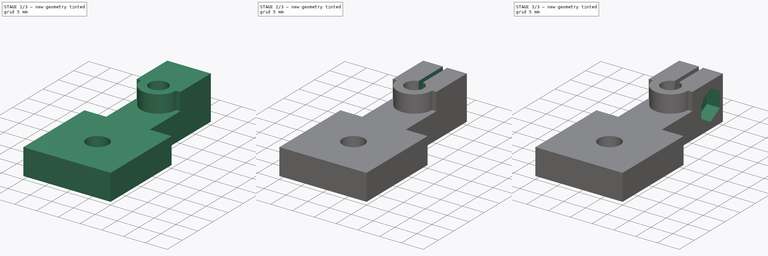
[diagram: build sequence overview — one tinted view per stage of 3, left to right]
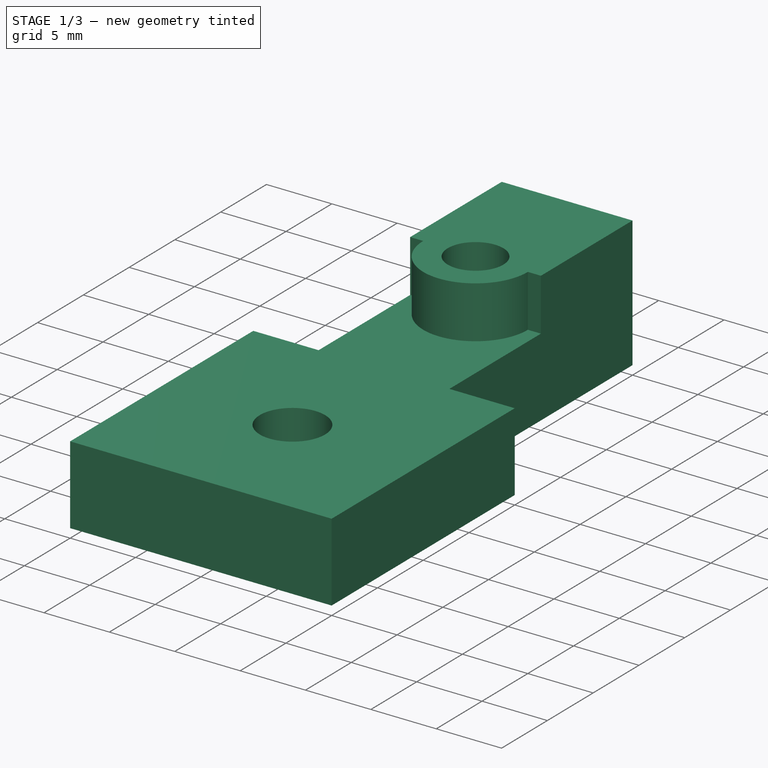
[diagram: stage 1 of 3 — iso view after this stage's code; geometry added in this stage tinted green]
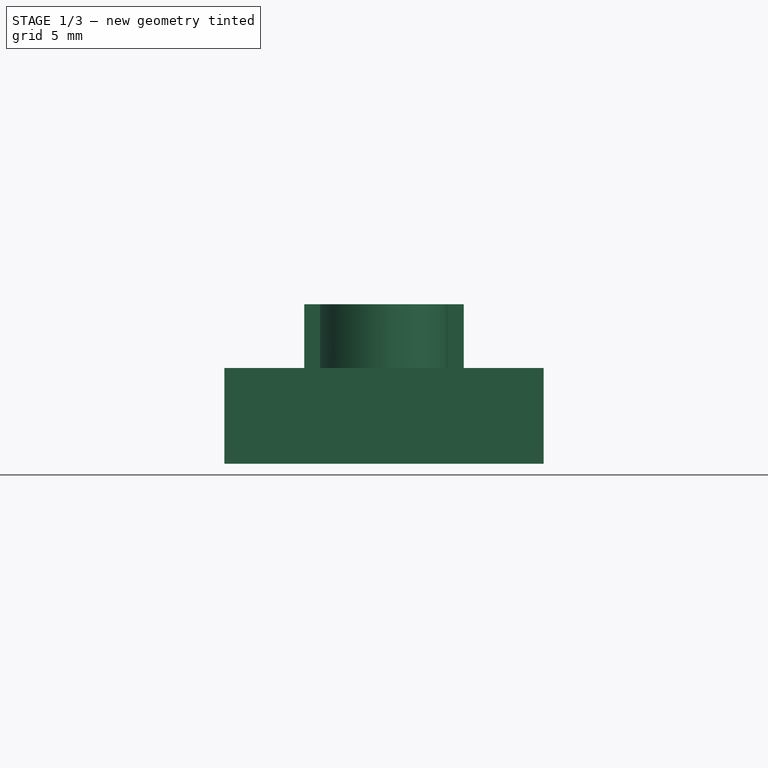
[diagram: stage 1 of 3 — front view after this stage's code; geometry added in this stage tinted green]
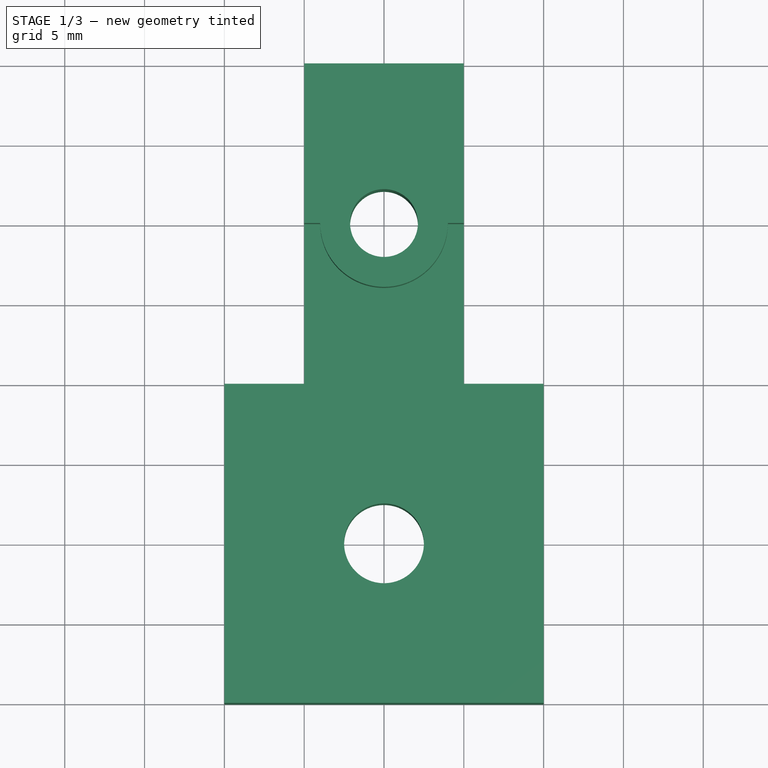
[diagram: stage 1 of 3 — top view after this stage's code; geometry added in this stage tinted green]
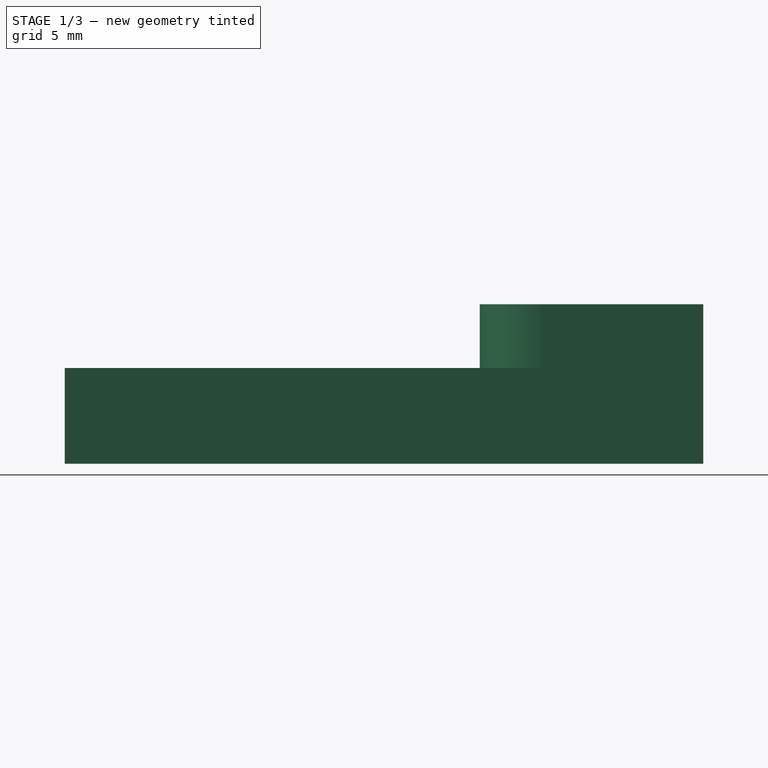
[diagram: stage 1 of 3 — right view after this stage's code; geometry added in this stage tinted green]
FCSTD DOCUMENT  (FreeCAD 0.20R27861 (Git))
Label: reverse boden tube holder straight
License: All rights reserved
LicenseURL: http://en.wikipedia.org/wiki/All_rights_reserved
objects: Sketcher::SketchObject×5, PartDesign::Pocket×3, PartDesign::Pad×2, PartDesign::Body×1
note: 16 computed .brp shape members not serialized (recipe doc carries the construction recipe); baked Part::Feature solids carry a one-line shape summary decoded from their .brp

FEATURE [Sketcher::SketchObject] Sketch
  FullyConstrained = true
  MapMode = 5
  Support = -> [XY_Plane]
  sketch-geometry (10):
    g0: LineSegment StartX=-5 StartY=40 StartZ=0 EndX=5 EndY=40 EndZ=0
    g1: LineSegment StartX=10 StartY=0 StartZ=0 EndX=-10 EndY=0 EndZ=0
    g2: Circle CenterX=0 CenterY=30 CenterZ=0 NormalX=0 NormalY=0 NormalZ=1 AngleXU=0 Radius=2.125
    g3: Circle CenterX=0 CenterY=10 CenterZ=0 NormalX=0 NormalY=0 NormalZ=1 AngleXU=0 Radius=2.5
    g4: LineSegment StartX=-10 StartY=0 StartZ=0 EndX=-10 EndY=20 EndZ=0
    g5: LineSegment StartX=10 StartY=0 StartZ=0 EndX=10 EndY=20 EndZ=0
    g6: LineSegment StartX=-10 StartY=20 StartZ=0 EndX=-5 EndY=20 EndZ=0
    g7: LineSegment StartX=-5 StartY=20 StartZ=0 EndX=-5 EndY=40 EndZ=0
    g8: LineSegment StartX=10 StartY=20 StartZ=0 EndX=5 EndY=20 EndZ=0
    g9: LineSegment StartX=5 StartY=20 StartZ=0 EndX=5 EndY=40 EndZ=0
  constraints (29):
    c: Horizontal(g1)
    c: PointOnObject(g1,g-1)
    c: Symmetric(g0,g0,g-2)
    c: DistanceX(g1,g1) = 20
    c: DistanceY(g1,g0) = 40
    c: PointOnObject(g2,g-2)
    c: Diameter(g2) = 4.25
    c: DistanceY(g2,g0) = 10
    c: PointOnObject(g3,g-2)
    c: Diameter(g3) = 5
    c: DistanceY(g-1,g3) = 10
    c: Coincident(g4,g1)
    c: Vertical(g4)
    c: Coincident(g5,g1)
    c: Vertical(g5)
    c: Coincident(g6,g4)
    c: Horizontal(g6)
    c: Coincident(g7,g6)
    c: Coincident(g7,g0)
    c: Vertical(g7)
    c: Coincident(g8,g5)
    c: Horizontal(g8)
    c: Coincident(g9,g8)
    c: Coincident(g9,g0)
    c: Vertical(g9)
    c: Equal(g6,g8)
    c: DistanceX(g0,g0) = 10
    c: Equal(g1,g5)
    c: Equal(g4,g5)
FEATURE [PartDesign::Pad] Pad
  Direction = (0,0,1)
  Length = 6
  Length2 = 10
  Profile = -> Sketch
  ReferenceAxis = -> Sketch [N_Axis]
  Refine = true
  Type = 0
FEATURE [Sketcher::SketchObject] Sketch001
  FullyConstrained = true
  MapMode = 5
  Support = -> [XY_Plane]
  sketch-geometry (7):
    g0: Circle CenterX=0 CenterY=30 CenterZ=0 NormalX=0 NormalY=0 NormalZ=1 AngleXU=0 Radius=2.125
    g1: ArcOfCircle CenterX=0 CenterY=30 CenterZ=0 NormalX=0 NormalY=0 NormalZ=1 AngleXU=0 Radius=4 StartAngle=3.14159 EndAngle=6.28319
    g2: LineSegment StartX=-5 StartY=40 StartZ=0 EndX=5 EndY=40 EndZ=0
    g3: LineSegment StartX=-4 StartY=30 StartZ=0 EndX=-5 EndY=30 EndZ=0
    g4: LineSegment StartX=-5 StartY=30 StartZ=0 EndX=-5 EndY=40 EndZ=0
    g5: LineSegment StartX=4 StartY=30 StartZ=0 EndX=5 EndY=30 EndZ=0
    g6: LineSegment StartX=5 StartY=30 StartZ=0 EndX=5 EndY=40 EndZ=0
  constraints (21):
    c: Diameter(g0) = 4.25
    c: DistanceY(g0) = 30
    c: PointOnObject(g0,g-2)
    c: Coincident(g1,g0)
    c: Horizontal(g2)
    c: Diameter(g1) = 8
    c: Horizontal(g1,g1)
    c: Horizontal(g0,g1)
    c: Coincident(g3,g1)
    c: Coincident(g4,g3)
    c: Coincident(g4,g2)
    c: Vertical(g4)
    c: Coincident(g5,g1)
    c: Coincident(g6,g5)
    c: Coincident(g6,g2)
    c: Horizontal(g5)
    c: Vertical(g6)
    c: Horizontal(g3)
    c: Equal(g3,g5)
    c: DistanceX(g2,g2) = 10
    c: DistanceY(g4,g4) = 10
FEATURE [PartDesign::Pad] Pad001
  BaseFeature = -> Pad
  Direction = (0,0,1)
  Length = 10
  Length2 = 10
  Profile = -> Sketch001
  ReferenceAxis = -> Sketch001 [N_Axis]
  Refine = true
  Type = 0
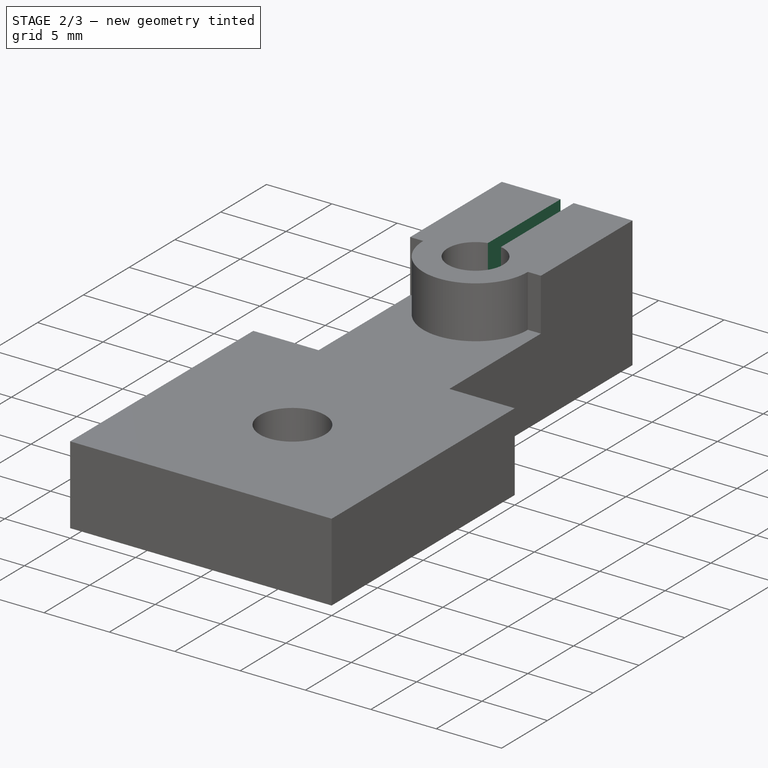
[diagram: stage 2 of 3 — iso view after this stage's code; geometry added in this stage tinted green]
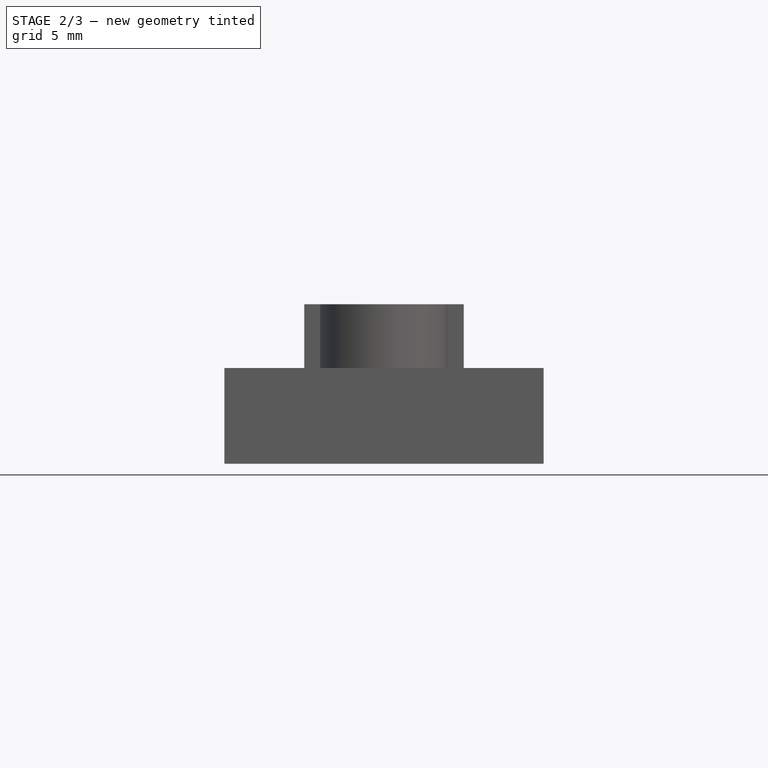
[diagram: stage 2 of 3 — front view after this stage's code; geometry added in this stage tinted green]
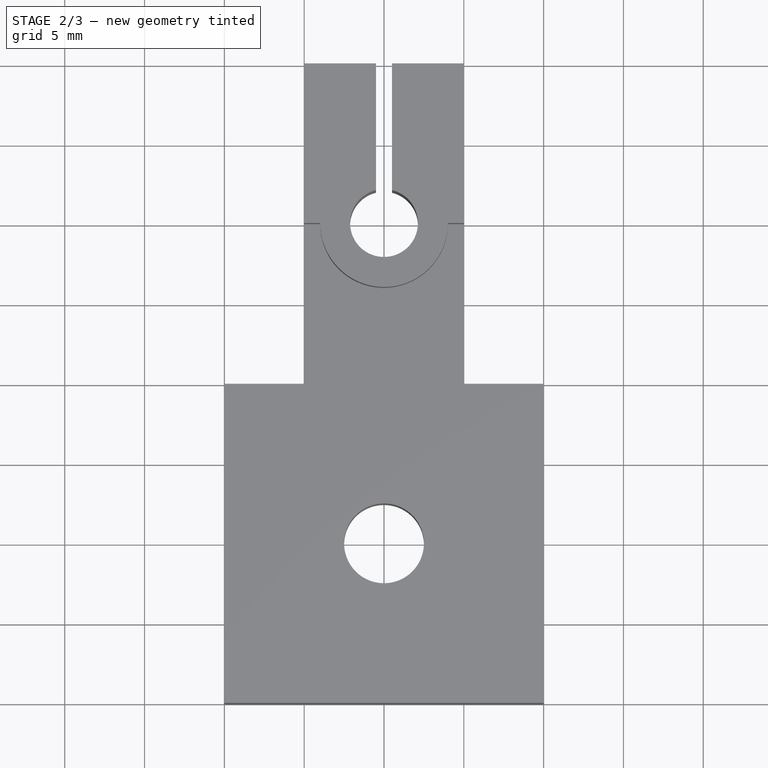
[diagram: stage 2 of 3 — top view after this stage's code; geometry added in this stage tinted green]
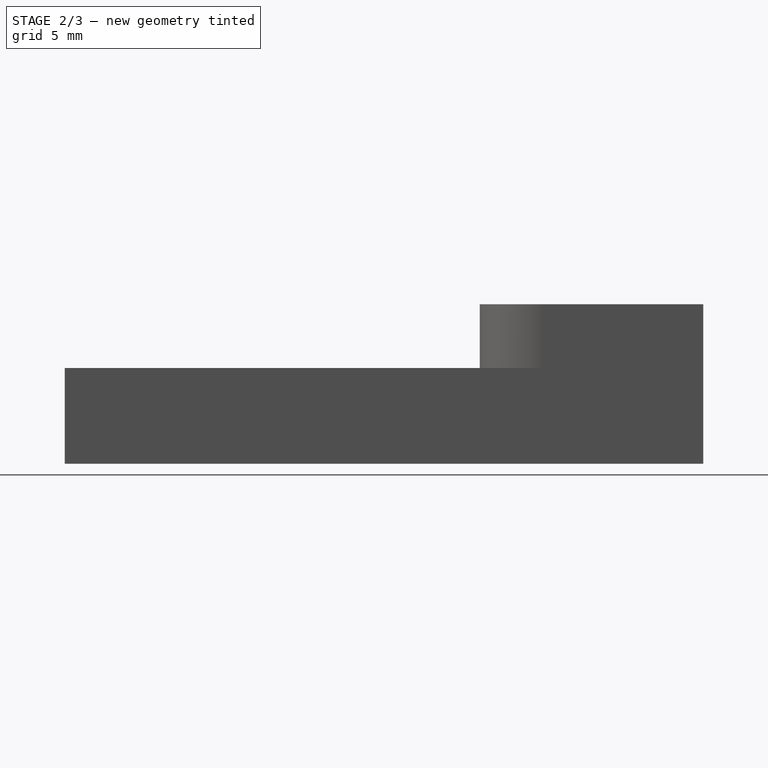
[diagram: stage 2 of 3 — right view after this stage's code; geometry added in this stage tinted green]
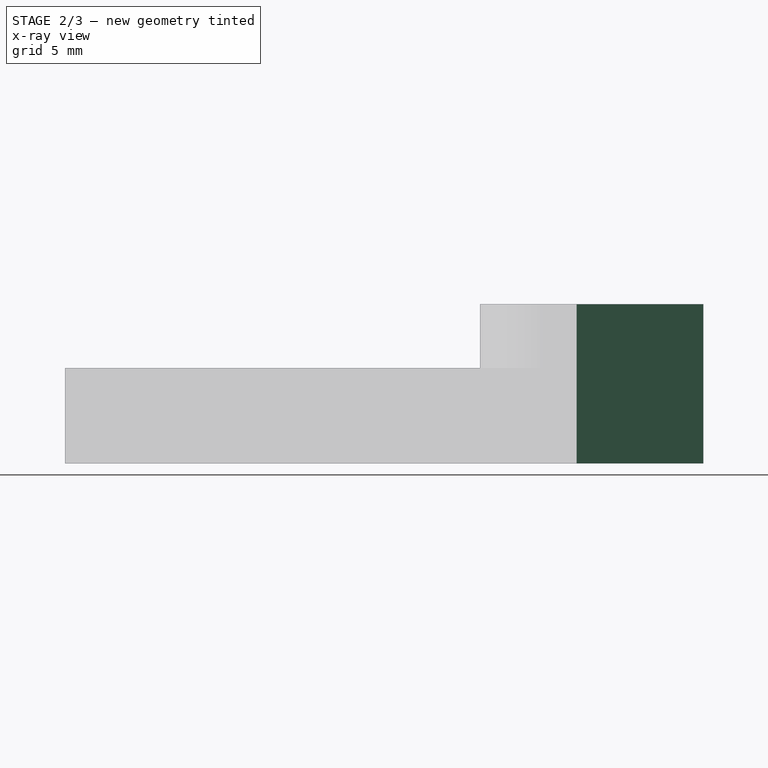
[diagram: stage 2 of 3 — x-ray composite at the right view; earlier geometry ghosted, this stage's added geometry solid]
FEATURE [Sketcher::SketchObject] Sketch002
  FullyConstrained = true
  MapMode = 5
  Support = -> [XY_Plane]
  sketch-geometry (4):
    g0: LineSegment StartX=-0.5 StartY=50 StartZ=0 EndX=0.5 EndY=50 EndZ=0
    g1: LineSegment StartX=0.5 StartY=50 StartZ=0 EndX=0.5 EndY=30 EndZ=0
    g2: LineSegment StartX=0.5 StartY=30 StartZ=0 EndX=-0.5 EndY=30 EndZ=0
    g3: LineSegment StartX=-0.5 StartY=30 StartZ=0 EndX=-0.5 EndY=50 EndZ=0
  constraints (11):
    c: Coincident(g0,g1)
    c: Coincident(g1,g2)
    c: Coincident(g2,g3)
    c: Coincident(g3,g0)
    c: Horizontal(g2)
    c: Vertical(g1)
    c: Vertical(g3)
    c: DistanceX(g0,g0) = 1
    c: Symmetric(g0,g0,g-2)
    c: DistanceY(g2) = 30
    c: DistanceY(g3,g3) = 20
FEATURE [PartDesign::Pocket] Pocket
  BaseFeature = -> Pad001
  Direction = (0,0,-1)
  Length = 5
  Length2 = 5
  Profile = -> Sketch002
  ReferenceAxis = -> Sketch002 [N_Axis]
  Refine = true
  Reversed = true
  Type = 1
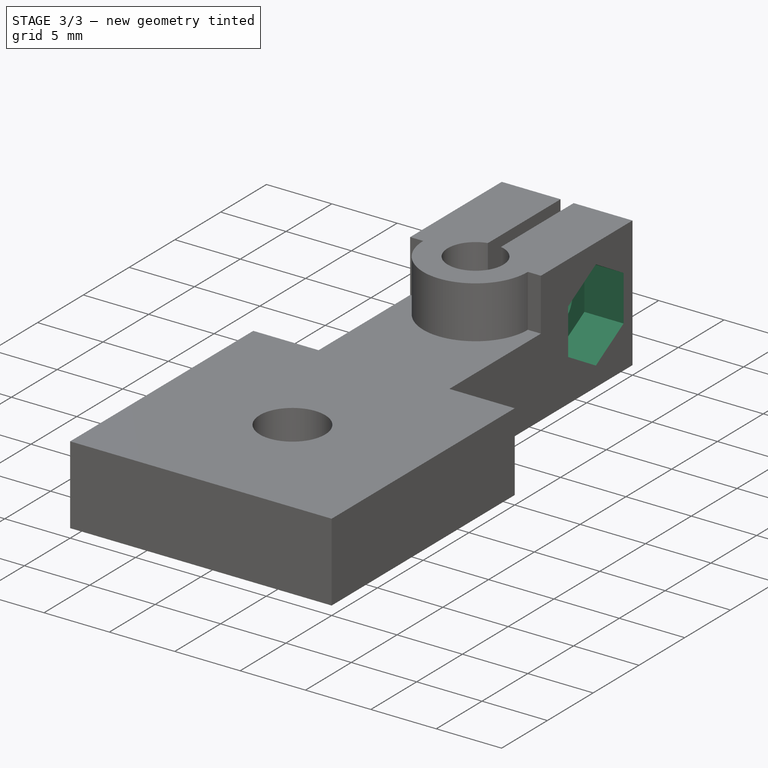
[diagram: stage 3 of 3 — iso view after this stage's code; geometry added in this stage tinted green]
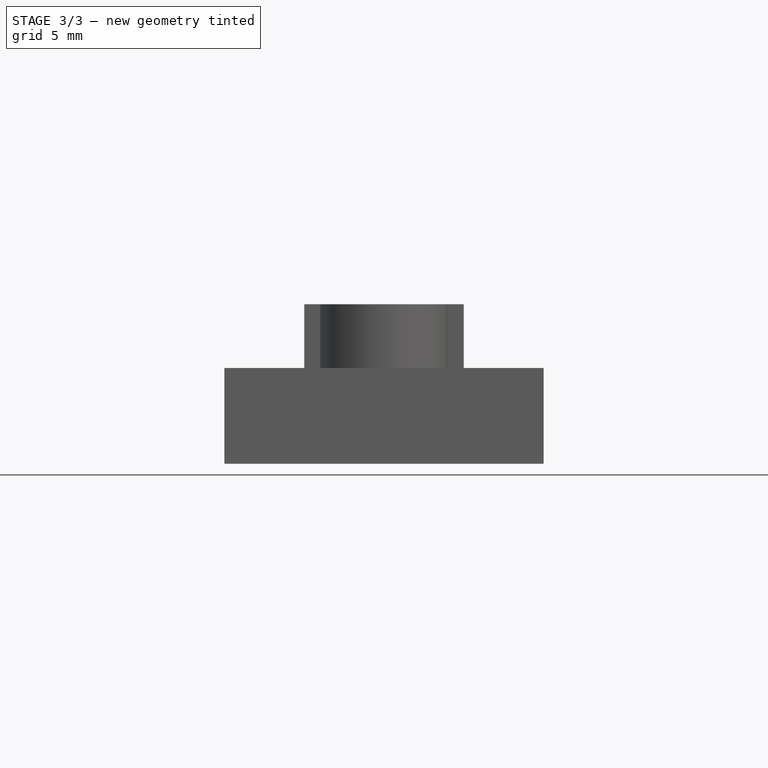
[diagram: stage 3 of 3 — front view after this stage's code; geometry added in this stage tinted green]
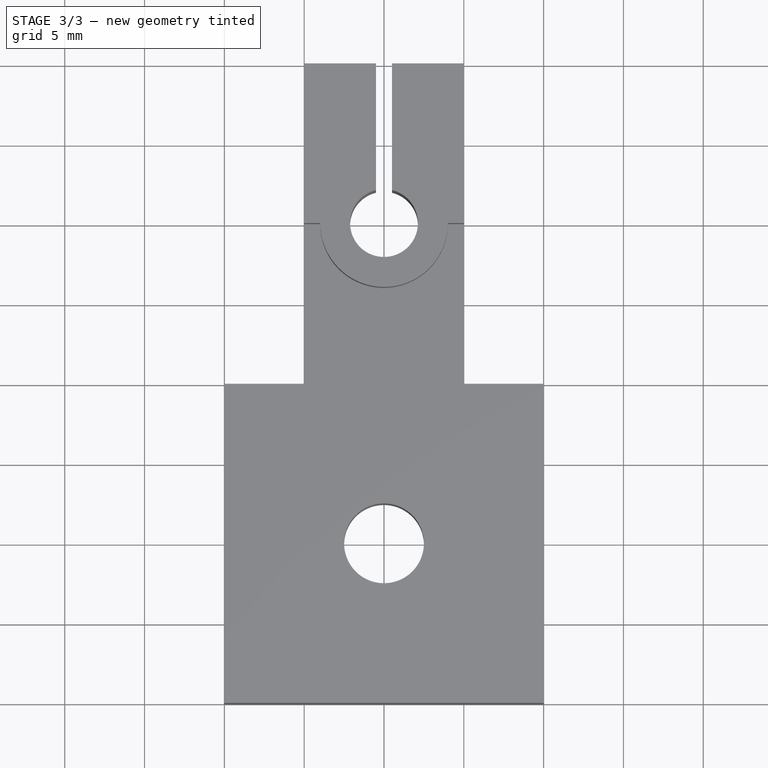
[diagram: stage 3 of 3 — top view after this stage's code; geometry added in this stage tinted green]
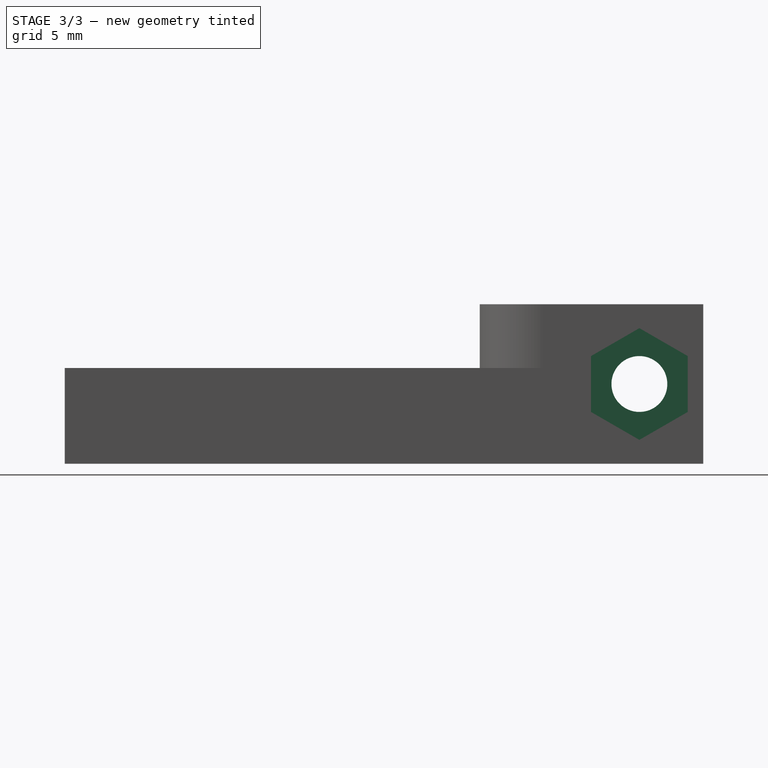
[diagram: stage 3 of 3 — right view after this stage's code; geometry added in this stage tinted green]
FEATURE [Sketcher::SketchObject] Sketch003
  FullyConstrained = true
  MapMode = 5
  Placement = pos=(0,0,0) rot=(0.57735,0.57735,0.57735;2.0944rad)
  Support = -> [YZ_Plane]
  sketch-geometry (1):
    g0: Circle CenterX=36 CenterY=5 CenterZ=0 NormalX=0 NormalY=0 NormalZ=1 AngleXU=0 Radius=1.75
  constraints (3):
    c: Diameter(g0) = 3.5
    c: DistanceY(g0) = 5
    c: DistanceX(g0) = 36
FEATURE [PartDesign::Pocket] Pocket001
  BaseFeature = -> Pocket
  Direction = (-1,2e-16,-3e-16)
  Length = 5
  Length2 = 5
  Midplane = true
  Profile = -> Sketch003
  ReferenceAxis = -> Sketch003 [N_Axis]
  Refine = true
  Type = 1
FEATURE [Sketcher::SketchObject] Sketch004
  ExternalGeometry = -> [Pocket001]
  FullyConstrained = true
  MapMode = 5
  Placement = pos=(5,2.457e-13,1.4449e-12) rot=(0.57735,0.57735,0.57735;2.0944rad)
  Support = -> [Pocket001]
  sketch-geometry (7):
    g0: LineSegment StartX=39.0311 StartY=3.25 StartZ=0 EndX=39.0311 EndY=6.75 EndZ=0
    g1: LineSegment StartX=39.0311 StartY=6.75 StartZ=0 EndX=36 EndY=8.5 EndZ=0
    g2: LineSegment StartX=36 StartY=8.5 StartZ=0 EndX=32.9689 EndY=6.75 EndZ=0
    g3: LineSegment StartX=32.9689 StartY=6.75 StartZ=0 EndX=32.9689 EndY=3.25 EndZ=0
    g4: LineSegment StartX=32.9689 StartY=3.25 StartZ=0 EndX=36 EndY=1.5 EndZ=0
    g5: LineSegment StartX=36 StartY=1.5 StartZ=0 EndX=39.0311 EndY=3.25 EndZ=0
    g6: Circle CenterX=36 CenterY=5 CenterZ=0 NormalX=0 NormalY=0 NormalZ=1 AngleXU=0 Radius=3.5
  constraints (16):
    c: Coincident(g0,g1)
    c: Coincident(g1,g2)
    c: Coincident(g2,g3)
    c: Coincident(g3,g4)
    c: Coincident(g4,g5)
    c: Coincident(g5,g0)
    c: Equal(g0, g1-g5) x5
    c: PointOnObject(g0,g6)
    c: PointOnObject(g1,g6)
    c: PointOnObject(g2,g6)
    c: PointOnObject(g3,g6)
    c: PointOnObject(g4,g6)
    c: PointOnObject(g5,g6)
    c: Coincident(g6,g-3)
    c: Vertical(g0)
    c: Diameter(g6) = 7
FEATURE [PartDesign::Pocket] Pocket002
  BaseFeature = -> Pocket001
  Direction = (-1,-4.91e-14,-2.889e-13)
  Length = 3
  Length2 = 5
  Profile = -> Sketch004
  ReferenceAxis = -> Sketch004 [N_Axis]
  Refine = true
  Type = 0
FEATURE [PartDesign::Body] Body
  Group = -> [Sketch,Pad,Sketch001,Pad001,Sketch002,Pocket,Sketch003,Pocket001,Sketch004,Pocket002]
  Origin = -> Origin
  Tip = -> Pocket002
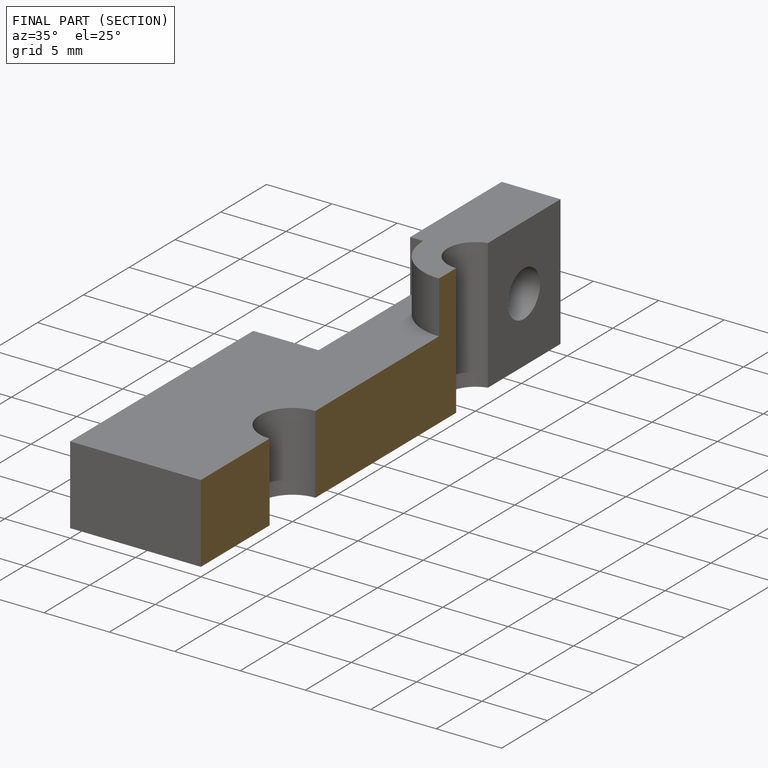
[diagram: finished part — half-section view (interior)]
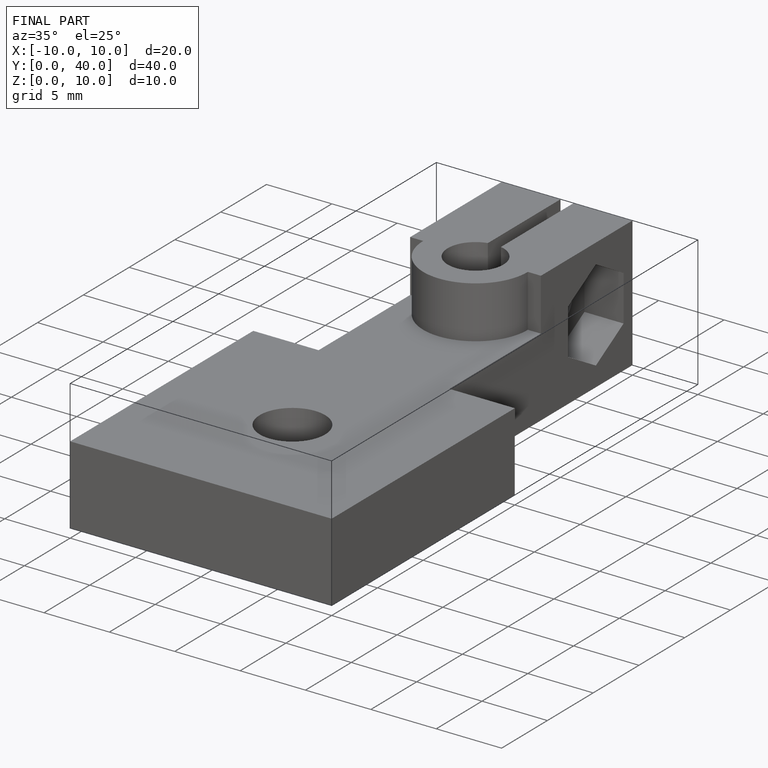
[diagram: finished part — iso view with bounding-box wireframe]
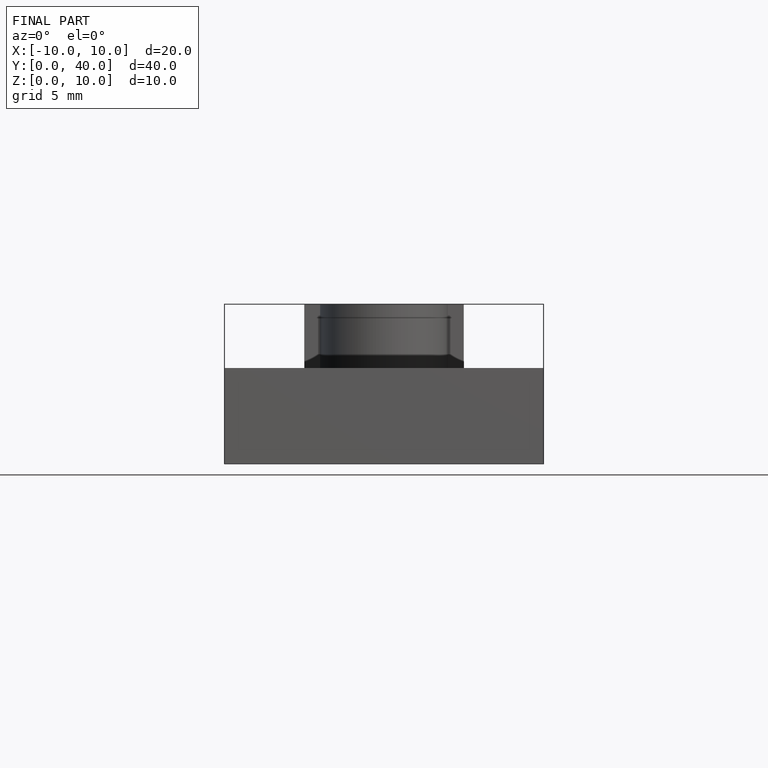
[diagram: finished part — front view with bounding-box wireframe]
